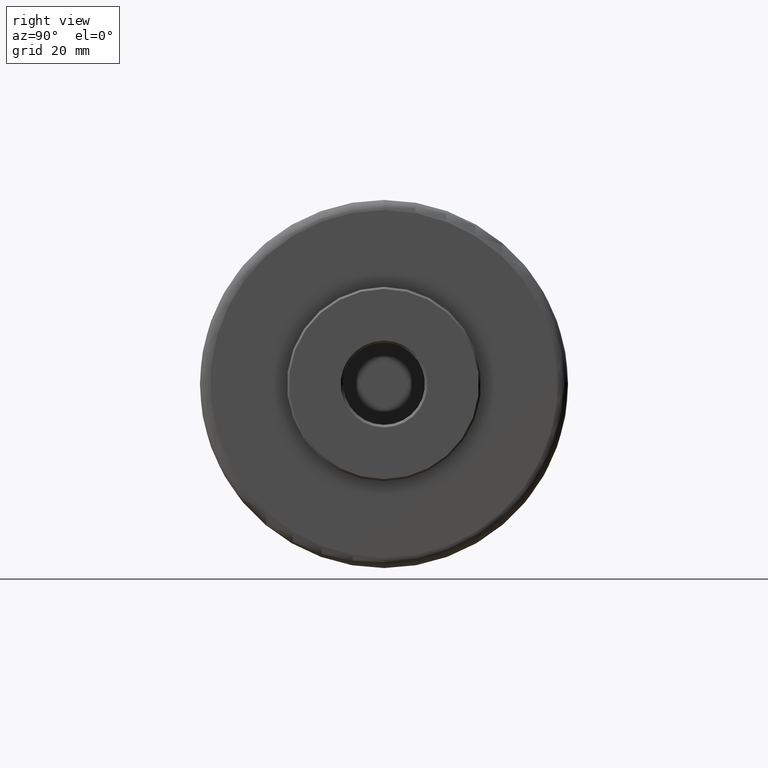
[diagram: clean part render]
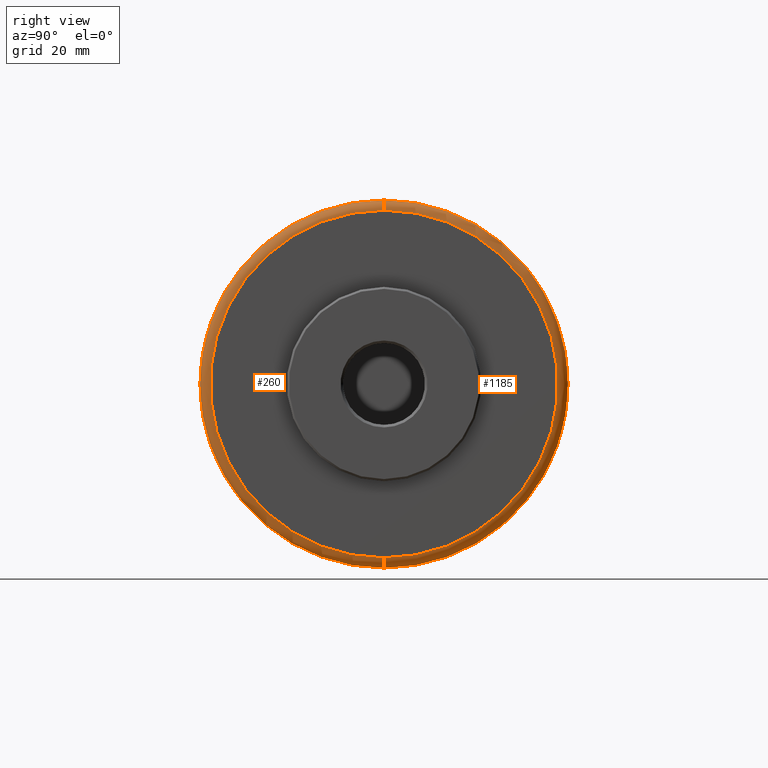
[diagram: same view with one multi-face feature highlighted, each face labeled with its STEP entity id]
A machine part, right view. The highlighted faces form ONE feature: a constant-radius fillet chain: 2 tangent blend faces with common blend radius 2 mm. The faces share edges in the B-rep.
Their STEP definitions:
[1] entity #1185 (Torus):
#18 = AXIS2_PLACEMENT_3D ( 'NONE', #924, #435, #560 ) ;
#97 = VERTEX_POINT ( 'NONE', #950 ) ;
#110 = AXIS2_PLACEMENT_3D ( 'NONE', #247, #358, #1308 ) ;
#122 = DIRECTION ( 'NONE',  ( 1.000000000000000000, -0.0000000000000000000, -0.0000000000000000000 ) ) ;
#126 = EDGE_CURVE ( 'NONE', #185, #604, #597, .T. ) ;
#140 = AXIS2_PLACEMENT_3D ( 'NONE', #472, #1204, #587 ) ;
#151 = AXIS2_PLACEMENT_3D ( 'NONE', #479, #1210, #590 ) ;
#179 = ORIENTED_EDGE ( 'NONE', *, *, #1214, .T. ) ;
#185 = VERTEX_POINT ( 'NONE', #382 ) ;
#224 = FACE_OUTER_BOUND ( 'NONE', #430, .T. ) ;
#247 = CARTESIAN_POINT ( 'NONE',  ( 94.50000000000000000, 0.0000000000000000000, 0.0000000000000000000 ) ) ;
#261 = VERTEX_POINT ( 'NONE', #831 ) ;
#294 = CIRCLE ( 'NONE', #151, 2.000000000000001800 ) ;
#358 = DIRECTION ( 'NONE',  ( -1.000000000000000000, 0.0000000000000000000, 0.0000000000000000000 ) ) ;
#382 = CARTESIAN_POINT ( 'NONE',  ( 94.50000000000000000, 0.0000000000000000000, 36.00000000000001400 ) ) ;
#430 = EDGE_LOOP ( 'NONE', ( #1241, #179, #1172, #827 ) ) ;
#435 = DIRECTION ( 'NONE',  ( -1.000000000000000000, 0.0000000000000000000, 0.0000000000000000000 ) ) ;
#472 = CARTESIAN_POINT ( 'NONE',  ( 94.50000000000000000, 4.163799117101001300E-015, -34.00000000000000700 ) ) ;
#479 = CARTESIAN_POINT ( 'NONE',  ( 94.50000000000000000, 0.0000000000000000000, 34.00000000000000700 ) ) ;
#491 = CARTESIAN_POINT ( 'NONE',  ( 94.50000000000000000, 4.408728476930472400E-015, -36.00000000000001400 ) ) ;
#560 = DIRECTION ( 'NONE',  ( 0.0000000000000000000, 0.0000000000000000000, 1.000000000000000000 ) ) ;
#587 = DIRECTION ( 'NONE',  ( 0.0000000000000000000, -1.224646799147353500E-016, 1.000000000000000000 ) ) ;
#590 = DIRECTION ( 'NONE',  ( 0.0000000000000000000, 0.0000000000000000000, -1.000000000000000000 ) ) ;
#597 = CIRCLE ( 'NONE', #18, 36.00000000000001400 ) ;
#604 = VERTEX_POINT ( 'NONE', #491 ) ;
#721 = CIRCLE ( 'NONE', #140, 2.000000000000001800 ) ;
#763 = CARTESIAN_POINT ( 'NONE',  ( 96.50000000000000000, 0.0000000000000000000, 0.0000000000000000000 ) ) ;
#817 = CIRCLE ( 'NONE', #992, 34.00000000000000700 ) ;
#827 = ORIENTED_EDGE ( 'NONE', *, *, #1231, .F. ) ;
#831 = CARTESIAN_POINT ( 'NONE',  ( 96.50000000000000000, 4.286263797015737300E-015, -34.00000000000000700 ) ) ;
#871 = DIRECTION ( 'NONE',  ( 0.0000000000000000000, 0.0000000000000000000, 1.000000000000000000 ) ) ;
#924 = CARTESIAN_POINT ( 'NONE',  ( 94.50000000000000000, 0.0000000000000000000, 0.0000000000000000000 ) ) ;
#950 = CARTESIAN_POINT ( 'NONE',  ( 96.50000000000000000, 0.0000000000000000000, 34.00000000000000700 ) ) ;
#992 = AXIS2_PLACEMENT_3D ( 'NONE', #763, #122, #871 ) ;
#1112 = EDGE_CURVE ( 'NONE', #261, #97, #817, .T. ) ;
#1172 = ORIENTED_EDGE ( 'NONE', *, *, #126, .F. ) ;
#1185 = ADVANCED_FACE ( 'NONE', ( #224 ), #1320, .T. ) ;
#1204 = DIRECTION ( 'NONE',  ( 0.0000000000000000000, 1.000000000000000000, 1.224646799147353200E-016 ) ) ;
#1210 = DIRECTION ( 'NONE',  ( 0.0000000000000000000, -1.000000000000000000, 0.0000000000000000000 ) ) ;
#1214 = EDGE_CURVE ( 'NONE', #261, #604, #721, .T. ) ;
#1231 = EDGE_CURVE ( 'NONE', #97, #185, #294, .T. ) ;
#1241 = ORIENTED_EDGE ( 'NONE', *, *, #1112, .F. ) ;
#1308 = DIRECTION ( 'NONE',  ( 0.0000000000000000000, 0.0000000000000000000, 1.000000000000000000 ) ) ;
#1320 = TOROIDAL_SURFACE ( 'NONE', #110, 34.00000000000000700, 2.000000000000000000 ) ;
[2] entity #260 (Torus):
#92 = AXIS2_PLACEMENT_3D ( 'NONE', #840, #206, #936 ) ;
#97 = VERTEX_POINT ( 'NONE', #950 ) ;
#140 = AXIS2_PLACEMENT_3D ( 'NONE', #472, #1204, #587 ) ;
#151 = AXIS2_PLACEMENT_3D ( 'NONE', #479, #1210, #590 ) ;
#185 = VERTEX_POINT ( 'NONE', #382 ) ;
#197 = DIRECTION ( 'NONE',  ( -1.000000000000000000, 0.0000000000000000000, 0.0000000000000000000 ) ) ;
#206 = DIRECTION ( 'NONE',  ( 1.000000000000000000, -0.0000000000000000000, -0.0000000000000000000 ) ) ;
#260 = ADVANCED_FACE ( 'NONE', ( #552 ), #300, .T. ) ;
#261 = VERTEX_POINT ( 'NONE', #831 ) ;
#293 = DIRECTION ( 'NONE',  ( 0.0000000000000000000, 0.0000000000000000000, 1.000000000000000000 ) ) ;
#294 = CIRCLE ( 'NONE', #151, 2.000000000000001800 ) ;
#300 = TOROIDAL_SURFACE ( 'NONE', #854, 34.00000000000000700, 2.000000000000000000 ) ;
#382 = CARTESIAN_POINT ( 'NONE',  ( 94.50000000000000000, 0.0000000000000000000, 36.00000000000001400 ) ) ;
#385 = ORIENTED_EDGE ( 'NONE', *, *, #1214, .F. ) ;
#414 = AXIS2_PLACEMENT_3D ( 'NONE', #830, #197, #929 ) ;
#472 = CARTESIAN_POINT ( 'NONE',  ( 94.50000000000000000, 4.163799117101001300E-015, -34.00000000000000700 ) ) ;
#479 = CARTESIAN_POINT ( 'NONE',  ( 94.50000000000000000, 0.0000000000000000000, 34.00000000000000700 ) ) ;
#491 = CARTESIAN_POINT ( 'NONE',  ( 94.50000000000000000, 4.408728476930472400E-015, -36.00000000000001400 ) ) ;
#497 = CIRCLE ( 'NONE', #92, 34.00000000000000700 ) ;
#552 = FACE_OUTER_BOUND ( 'NONE', #1132, .T. ) ;
#587 = DIRECTION ( 'NONE',  ( 0.0000000000000000000, -1.224646799147353500E-016, 1.000000000000000000 ) ) ;
#590 = DIRECTION ( 'NONE',  ( 0.0000000000000000000, 0.0000000000000000000, -1.000000000000000000 ) ) ;
#604 = VERTEX_POINT ( 'NONE', #491 ) ;
#721 = CIRCLE ( 'NONE', #140, 2.000000000000001800 ) ;
#769 = ORIENTED_EDGE ( 'NONE', *, *, #877, .F. ) ;
#783 = EDGE_CURVE ( 'NONE', #604, #185, #1149, .T. ) ;
#830 = CARTESIAN_POINT ( 'NONE',  ( 94.50000000000000000, 0.0000000000000000000, 0.0000000000000000000 ) ) ;
#831 = CARTESIAN_POINT ( 'NONE',  ( 96.50000000000000000, 4.286263797015737300E-015, -34.00000000000000700 ) ) ;
#840 = CARTESIAN_POINT ( 'NONE',  ( 96.50000000000000000, 0.0000000000000000000, 0.0000000000000000000 ) ) ;
#854 = AXIS2_PLACEMENT_3D ( 'NONE', #927, #1025, #293 ) ;
#877 = EDGE_CURVE ( 'NONE', #97, #261, #497, .T. ) ;
#927 = CARTESIAN_POINT ( 'NONE',  ( 94.50000000000000000, 0.0000000000000000000, 0.0000000000000000000 ) ) ;
#929 = DIRECTION ( 'NONE',  ( 0.0000000000000000000, 0.0000000000000000000, 1.000000000000000000 ) ) ;
#936 = DIRECTION ( 'NONE',  ( 0.0000000000000000000, 0.0000000000000000000, 1.000000000000000000 ) ) ;
#950 = CARTESIAN_POINT ( 'NONE',  ( 96.50000000000000000, 0.0000000000000000000, 34.00000000000000700 ) ) ;
#1025 = DIRECTION ( 'NONE',  ( -1.000000000000000000, 0.0000000000000000000, 0.0000000000000000000 ) ) ;
#1038 = ORIENTED_EDGE ( 'NONE', *, *, #1231, .T. ) ;
#1132 = EDGE_LOOP ( 'NONE', ( #385, #769, #1038, #1196 ) ) ;
#1149 = CIRCLE ( 'NONE', #414, 36.00000000000001400 ) ;
#1196 = ORIENTED_EDGE ( 'NONE', *, *, #783, .F. ) ;
#1204 = DIRECTION ( 'NONE',  ( 0.0000000000000000000, 1.000000000000000000, 1.224646799147353200E-016 ) ) ;
#1210 = DIRECTION ( 'NONE',  ( 0.0000000000000000000, -1.000000000000000000, 0.0000000000000000000 ) ) ;
#1214 = EDGE_CURVE ( 'NONE', #261, #604, #721, .T. ) ;
#1231 = EDGE_CURVE ( 'NONE', #97, #185, #294, .T. ) ;